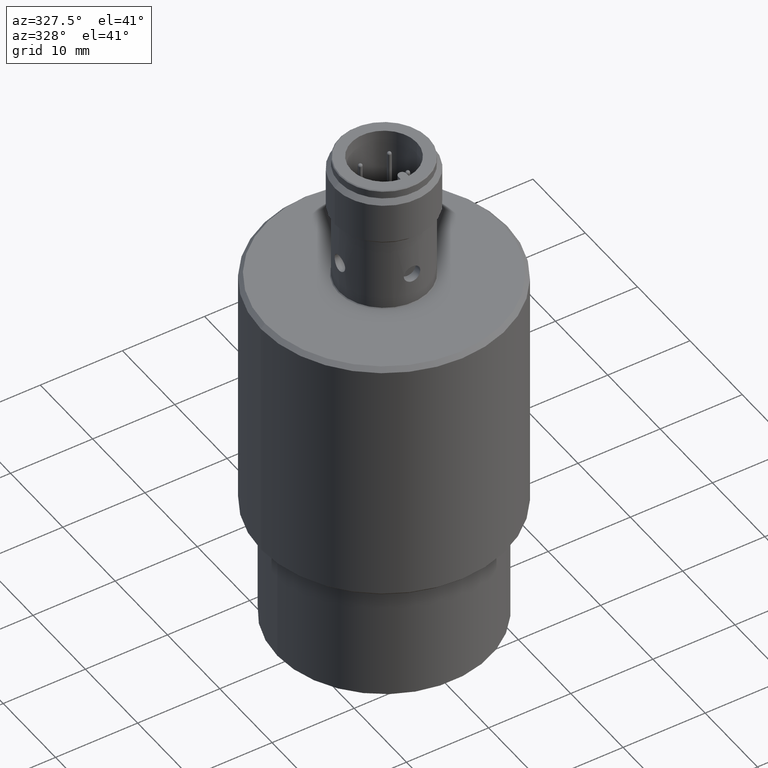
[diagram: clean part render]
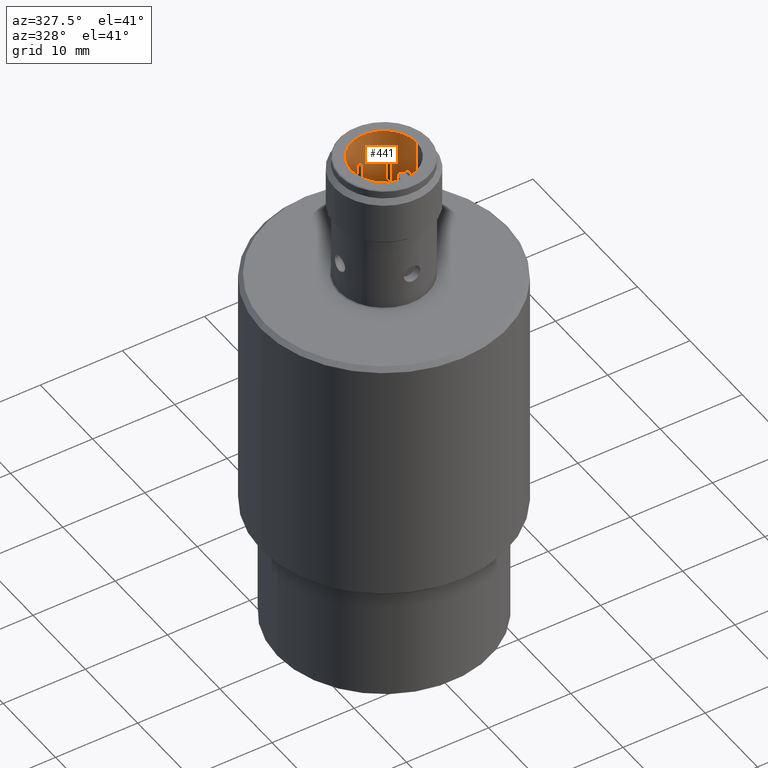
[diagram: same view with one face highlighted and labeled with its STEP entity id]
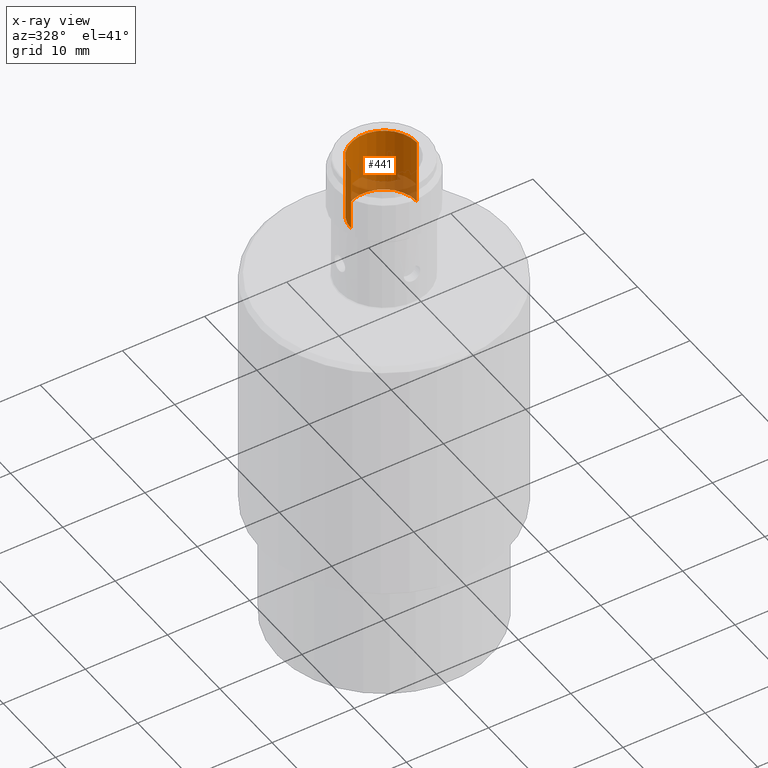
[diagram: x-ray of the same camera — body ghosted, the highlighted face saturated]
A machine part, auxiliary view. The second image highlights one B-rep face of the part: STEP entity #441.
The next image is the same camera in x-ray: the body ghosted, the highlighted face saturated — about 20% of this face is hidden behind the body in this view.
In plain terms, the highlighted cylindrical surface (partial cylindrical patch) has radius 4 mm, axis along (0, 0, -1).
Its self-contained STEP definition (entity closure, byte-faithful):
#339=CARTESIAN_POINT('POINT618',(4.0E+000,4.89842541528951E-016,5.4E+001
   ));
#340=VERTEX_POINT('VERTEX618',#339);
#341=CARTESIAN_POINT('POS959',(0.0E+000,0.0E+000,5.4E+001));
#342=DIRECTION('DIR1417',(0.0E+000,0.0E+000,-1.0E+000));
#343=DIRECTION('DIR1418',(1.0E+000,0.0E+000,0.0E+000));
#344=AXIS2_PLACEMENT_3D('AXIS459',#341,#342,#343);
#345=CIRCLE('ELLIPSE220',#344,4.0E+000);
#348=CARTESIAN_POINT('POINT619',(-4.0E+000,-4.89842541528951E-016,
   5.4E+001));
#349=VERTEX_POINT('VERTEX619',#348);
#350=EDGE_CURVE('EDGE945',#349,#340,#345,.T.);
#395=CARTESIAN_POINT('POINT622',(4.0E+000,4.89842541528951E-016,6.2E+001
   ));
#396=VERTEX_POINT('VERTEX622',#395);
#397=CARTESIAN_POINT('POS963',(4.0E+000,4.89842541528951E-016,5.8E+001))
   ;
#398=DIRECTION('DIR1424',(0.0E+000,0.0E+000,1.0E+000));
#399=VECTOR('VEC502',#398,1.0E+000);
#400=LINE('STRAIGHT502',#397,#399);
#401=EDGE_CURVE('EDGE949',#340,#396,#400,.T.);
#412=CARTESIAN_POINT('POS965',(0.0E+000,0.0E+000,6.2E+001));
#413=DIRECTION('DIR1426',(0.0E+000,0.0E+000,-1.0E+000));
#414=DIRECTION('DIR1427',(1.0E+000,0.0E+000,0.0E+000));
#415=AXIS2_PLACEMENT_3D('AXIS462',#412,#413,#414);
#416=CIRCLE('ELLIPSE222',#415,4.0E+000);
#421=CARTESIAN_POINT('POS966',(0.0E+000,0.0E+000,5.8E+001));
#422=DIRECTION('DIR1428',(0.0E+000,0.0E+000,-1.0E+000));
#423=DIRECTION('DIR1429',(1.0E+000,0.0E+000,0.0E+000));
#424=AXIS2_PLACEMENT_3D('AXIS463',#421,#422,#423);
#425=CYLINDRICAL_SURFACE('CONE_SURF80',#424,4.0E+000);
#427=ORIENTED_EDGE('COEDGE1895',*,*,#401,.T.);
#428=CARTESIAN_POINT('POINT624',(-4.0E+000,-4.89842541528951E-016,
   6.2E+001));
#429=VERTEX_POINT('VERTEX624',#428);
#430=EDGE_CURVE('EDGE952',#429,#396,#416,.T.);
#431=ORIENTED_EDGE('COEDGE1896',*,*,#430,.F.);
#432=CARTESIAN_POINT('POS967',(-4.0E+000,-4.89842541528951E-016,5.8E+001
   ));
#433=DIRECTION('DIR1430',(0.0E+000,0.0E+000,-1.0E+000));
#434=VECTOR('VEC504',#433,1.0E+000);
#435=LINE('STRAIGHT504',#432,#434);
#436=EDGE_CURVE('EDGE953',#429,#349,#435,.T.);
#437=ORIENTED_EDGE('COEDGE1897',*,*,#436,.T.);
#438=ORIENTED_EDGE('COEDGE1898',*,*,#350,.T.);
#439=EDGE_LOOP('NONE',(#427,#431,#437,#438));
#440=FACE_BOUND('LOOP1',#439,.T.);
#441=ADVANCED_FACE('FACE359',(#440),#425,.F.);